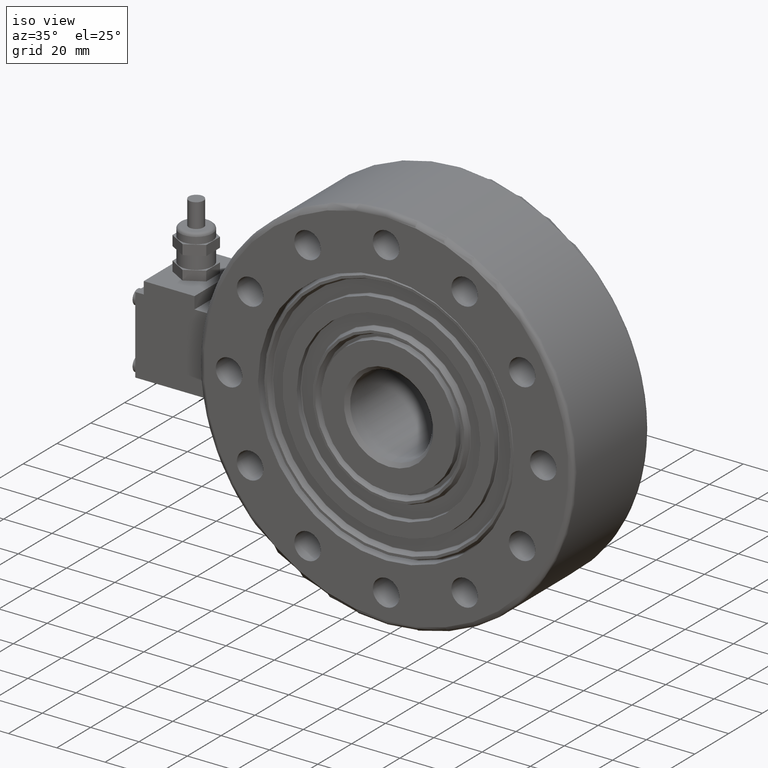
[diagram: clean part render]
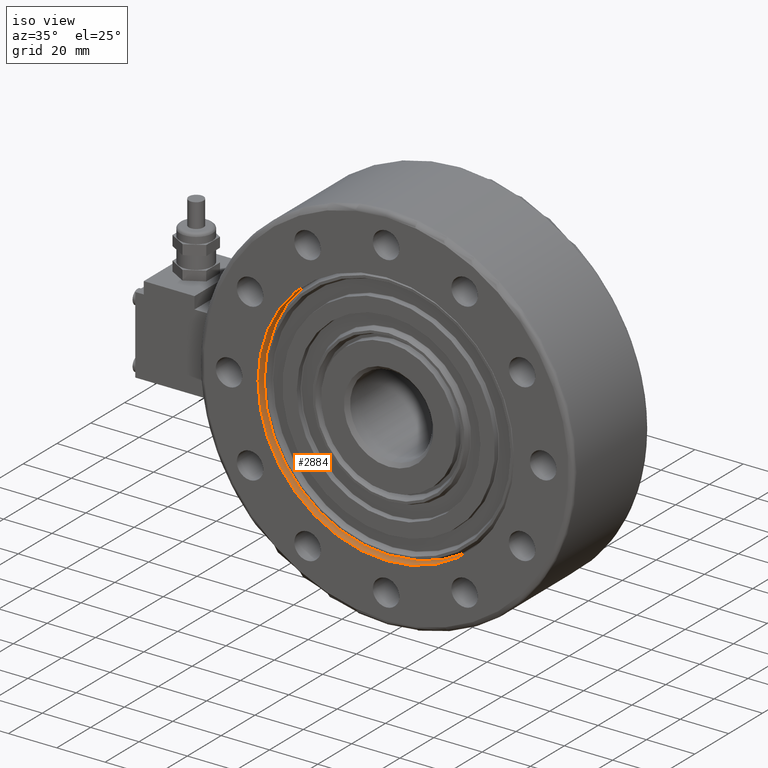
[diagram: same view with one face highlighted and labeled with its STEP entity id]
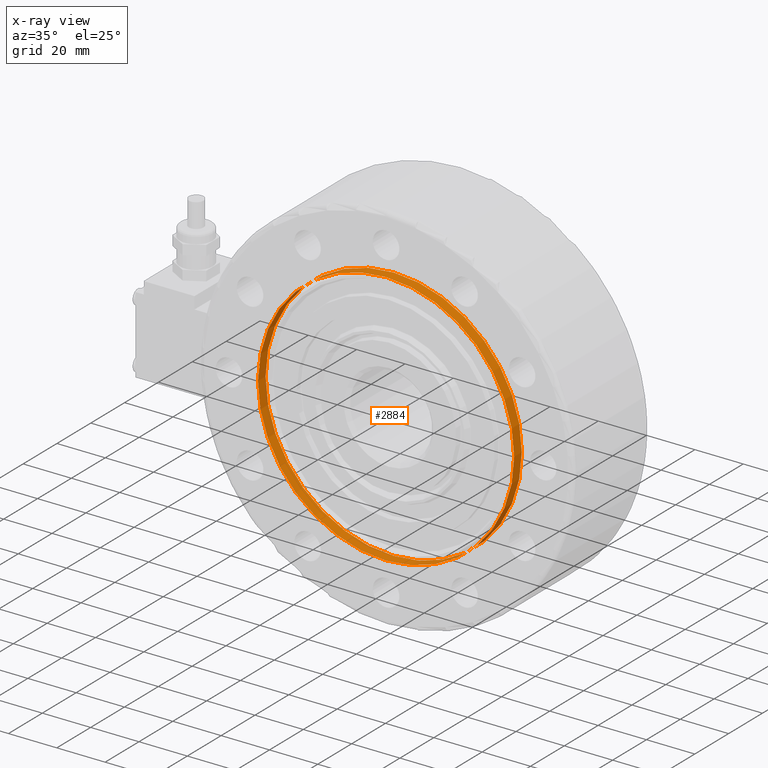
[diagram: x-ray of the same camera — body ghosted, the highlighted face saturated]
A machine part, iso view. The second image highlights one B-rep face of the part: STEP entity #2884.
The next image is the same camera in x-ray: the body ghosted, the highlighted face saturated — about 0% of this face is hidden behind the body in this view.
In plain terms, the highlighted cylindrical surface (bore or boss wall) has radius 53 mm, axis along (0, -1, 0).
Its self-contained STEP definition (entity closure, byte-faithful):
#252=FACE_OUTER_BOUND('',#408,.T.);
#408=EDGE_LOOP('',(#1967,#1968,#1969,#1970,#1971,#1972));
#620=LINE('',#4302,#813);
#813=VECTOR('',#3409,53.);
#1006=CIRCLE('',#3055,53.);
#1007=CIRCLE('',#3056,53.);
#1008=CIRCLE('',#3057,53.);
#1009=CIRCLE('',#3058,53.);
#1203=VERTEX_POINT('',#4298);
#1204=VERTEX_POINT('',#4299);
#1205=VERTEX_POINT('',#4301);
#1206=VERTEX_POINT('',#4303);
#1523=EDGE_CURVE('',#1203,#1204,#1006,.T.);
#1524=EDGE_CURVE('',#1204,#1205,#620,.T.);
#1525=EDGE_CURVE('',#1205,#1206,#1007,.T.);
#1526=EDGE_CURVE('',#1206,#1205,#1008,.T.);
#1527=EDGE_CURVE('',#1204,#1203,#1009,.T.);
#1967=ORIENTED_EDGE('',*,*,#1523,.T.);
#1968=ORIENTED_EDGE('',*,*,#1524,.T.);
#1969=ORIENTED_EDGE('',*,*,#1525,.T.);
#1970=ORIENTED_EDGE('',*,*,#1526,.T.);
#1971=ORIENTED_EDGE('',*,*,#1524,.F.);
#1972=ORIENTED_EDGE('',*,*,#1527,.T.);
#2855=CYLINDRICAL_SURFACE('',#3054,53.);
#2884=ADVANCED_FACE('',(#252),#2855,.F.);
#3054=AXIS2_PLACEMENT_3D('',#4297,#3405,#3406);
#3055=AXIS2_PLACEMENT_3D('',#4300,#3407,#3408);
#3056=AXIS2_PLACEMENT_3D('',#4304,#3410,#3411);
#3057=AXIS2_PLACEMENT_3D('',#4305,#3412,#3413);
#3058=AXIS2_PLACEMENT_3D('',#4306,#3414,#3415);
#3405=DIRECTION('center_axis',(0.,-1.,0.));
#3406=DIRECTION('ref_axis',(0.,0.,-1.));
#3407=DIRECTION('center_axis',(0.,1.,0.));
#3408=DIRECTION('ref_axis',(0.,0.,1.));
#3409=DIRECTION('',(0.,-1.,0.));
#3410=DIRECTION('center_axis',(0.,-1.,0.));
#3411=DIRECTION('ref_axis',(0.,0.,-1.));
#3412=DIRECTION('center_axis',(0.,-1.,0.));
#3413=DIRECTION('ref_axis',(0.,0.,-1.));
#3414=DIRECTION('center_axis',(0.,1.,0.));
#3415=DIRECTION('ref_axis',(0.,0.,1.));
#4297=CARTESIAN_POINT('Origin',(0.,500000.,0.));
#4298=CARTESIAN_POINT('',(0.,-17.9999999999723,-53.));
#4299=CARTESIAN_POINT('',(-6.49062803548097E-15,-18.0000000000291,53.));
#4300=CARTESIAN_POINT('Origin',(0.,-17.9999999999723,0.));
#4301=CARTESIAN_POINT('',(-6.49062803548097E-15,-22.4999999999272,53.));
#4302=CARTESIAN_POINT('',(-6.49062803548097E-15,500000.,53.));
#4303=CARTESIAN_POINT('',(0.,-22.4999999999999,-53.));
#4304=CARTESIAN_POINT('Origin',(0.,-22.4999999999999,0.));
#4305=CARTESIAN_POINT('Origin',(0.,-22.4999999999999,0.));
#4306=CARTESIAN_POINT('Origin',(0.,-17.9999999999723,0.));